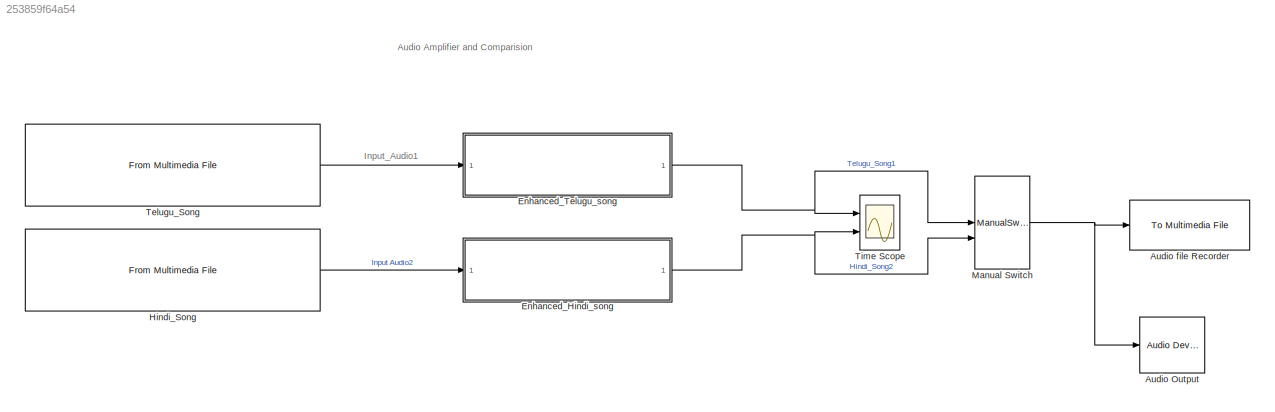
MODEL slx_253859f64a54
KIND model
CONFIG AbsTol = auto
CONFIG EnableMultiTasking = off
CONFIG FixedStep = auto
CONFIG MaxStep = auto
CONFIG MinStep = auto
CONFIG RelTol = 1e-3
CONFIG SampleTimeConstraint = Unconstrained
CONFIG SolverName = VariableStepAuto
CONFIG StartTime = 0.0
CONFIG StopTime = 15.0
BLOCK [Reference]  Audio file Recorder  REF=dspvision/To Multimedia File
  Ports = [1]
  SourceBlock = dspvision/To Multimedia File
  SourceProductBaseCode = DS,HW,VP
  SourceType = To Multimedia File
BLOCK [ManualSwitch]  Manual Switch
  CurrentSetting = 0
BLOCK [Reference] Audio Output  REF=dspsnks4/Audio Device
Writer
  Ports = [1]
  SourceBlock = dspsnks4/Audio Device\nWriter
  SourceProductBaseCode = DS
  SourceType = Audio Device Writer
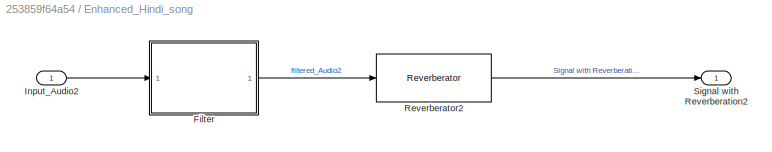
BLOCK [SubSystem] Enhanced_Hindi_song
  Ports = [1, 1]
  RequestExecContextInheritance = off
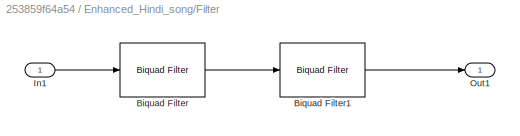
BLOCK [SubSystem] Enhanced_Hindi_song/Filter 
  Ports = [1, 1]
  RequestExecContextInheritance = off
BLOCK [Reference] Enhanced_Hindi_song/Filter /Biquad Filter  REF=dsparch4/Biquad Filter
  Ports = [1, 1]
  SourceBlock = dsparch4/Biquad Filter
  SourceProductBaseCode = DS
  SourceType = Biquad Filter
  UserDataPersistent = on
BLOCK [Reference] Enhanced_Hindi_song/Filter /Biquad Filter1  REF=dsparch4/Biquad Filter
  Ports = [1, 1]
  SourceBlock = dsparch4/Biquad Filter
  SourceProductBaseCode = DS
  SourceType = Biquad Filter
  UserDataPersistent = on
BLOCK [Inport] Enhanced_Hindi_song/Filter /In1
BLOCK [Outport] Enhanced_Hindi_song/Filter /Out1
BLOCK [Inport] Enhanced_Hindi_song/Input_Audio2
BLOCK [Reference] Enhanced_Hindi_song/Reverberator2  REF=audioeffects/Reverberator
  Ports = [1, 1]
  SourceBlock = audioeffects/Reverberator
  SourceProductBaseCode = AU
  SourceType = audio.simulink.Reverberator
BLOCK [Outport] Enhanced_Hindi_song/Signal with Reverberation2
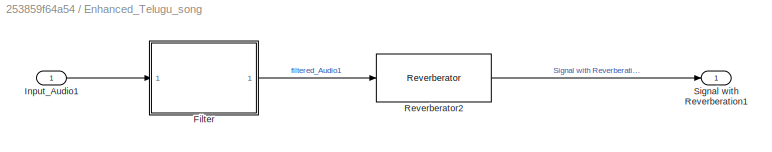
BLOCK [SubSystem] Enhanced_Telugu_song
  Ports = [1, 1]
  RequestExecContextInheritance = off
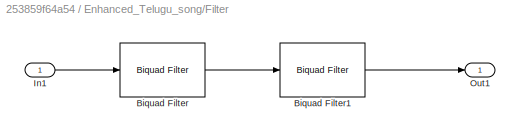
BLOCK [SubSystem] Enhanced_Telugu_song/Filter 
  Ports = [1, 1]
  RequestExecContextInheritance = off
BLOCK [Reference] Enhanced_Telugu_song/Filter /Biquad Filter  REF=dsparch4/Biquad Filter
  Ports = [1, 1]
  SourceBlock = dsparch4/Biquad Filter
  SourceProductBaseCode = DS
  SourceType = Biquad Filter
  UserDataPersistent = on
BLOCK [Reference] Enhanced_Telugu_song/Filter /Biquad Filter1  REF=dsparch4/Biquad Filter
  Ports = [1, 1]
  SourceBlock = dsparch4/Biquad Filter
  SourceProductBaseCode = DS
  SourceType = Biquad Filter
  UserDataPersistent = on
BLOCK [Inport] Enhanced_Telugu_song/Filter /In1
BLOCK [Outport] Enhanced_Telugu_song/Filter /Out1
BLOCK [Inport] Enhanced_Telugu_song/Input_Audio1
BLOCK [Reference] Enhanced_Telugu_song/Reverberator2  REF=audioeffects/Reverberator
  Ports = [1, 1]
  SourceBlock = audioeffects/Reverberator
  SourceProductBaseCode = AU
  SourceType = audio.simulink.Reverberator
BLOCK [Outport] Enhanced_Telugu_song/Signal with Reverberation1
BLOCK [Reference] Hindi_Song  REF=dspvision/From Multimedia File
  Ports = [0, 1]
  SourceBlock = dspvision/From Multimedia File
  SourceProductBaseCode = DS,HW,VP
  SourceType = From Multimedia File
BLOCK [Reference] Telugu_Song  REF=dspvision/From Multimedia File
  Ports = [0, 1]
  SourceBlock = dspvision/From Multimedia File
  SourceProductBaseCode = DS,HW,VP
  SourceType = From Multimedia File
BLOCK [Scope] Time Scope
  DefaultConfigurationName = spbscopes.TimeScopeBlockCfg
  Floating = off
  NameLocation = left
  NumInputPorts = 2
  Ports = [2]
  ScopeSpecificationString = spbscopes.TimeScopeBlockCfg('CurrentConfiguration', extmgr.ConfigurationSet(extmgr.Configuration('Core','General UI',true,'FigureColor',[0.156862745098039 0.156862745098039 0.156862745098039]),extmgr.Configuration('Core','Source UI',true),extmgr.Configuration('Sources','WiredSimulink',true),extmgr.Configuration('Visuals','Time Domain',true,'DisplayLayoutDimensions',[2 1],'DisplayPropertyDefaults',...<+2099ch>
  UserDataPersistent = on
ANNOTATION (root): Audio Amplifier and Comparision
ANNOTATION (root): Input_Audio1
NET  Manual Switch:1 ->  Audio file Recorder:1, Audio Output:1
LINE Enhanced_Hindi_song/Filter /Biquad Filter1:1 -> Enhanced_Hindi_song/Filter /Out1:1
LINE Enhanced_Hindi_song/Filter /Biquad Filter:1 -> Enhanced_Hindi_song/Filter /Biquad Filter1:1
LINE Enhanced_Hindi_song/Filter /In1:1 -> Enhanced_Hindi_song/Filter /Biquad Filter:1
LINE Enhanced_Hindi_song/Filter :1 -> Enhanced_Hindi_song/Reverberator2:1
LINE Enhanced_Hindi_song/Input_Audio2:1 -> Enhanced_Hindi_song/Filter :1
LINE Enhanced_Hindi_song/Reverberator2:1 -> Enhanced_Hindi_song/Signal with Reverberation2:1
NET Enhanced_Hindi_song:1 ->  Manual Switch:2, Time Scope:2
LINE Enhanced_Telugu_song/Filter /Biquad Filter1:1 -> Enhanced_Telugu_song/Filter /Out1:1
LINE Enhanced_Telugu_song/Filter /Biquad Filter:1 -> Enhanced_Telugu_song/Filter /Biquad Filter1:1
LINE Enhanced_Telugu_song/Filter /In1:1 -> Enhanced_Telugu_song/Filter /Biquad Filter:1
LINE Enhanced_Telugu_song/Filter :1 -> Enhanced_Telugu_song/Reverberator2:1
LINE Enhanced_Telugu_song/Input_Audio1:1 -> Enhanced_Telugu_song/Filter :1
LINE Enhanced_Telugu_song/Reverberator2:1 -> Enhanced_Telugu_song/Signal with Reverberation1:1
NET Enhanced_Telugu_song:1 ->  Manual Switch:1, Time Scope:1
LINE Hindi_Song:1 -> Enhanced_Hindi_song:1
LINE Telugu_Song:1 -> Enhanced_Telugu_song:1
note: NET lines group one-source signal fan-out (src -> all destinations, sorted); 1:1 wires keep LINE
